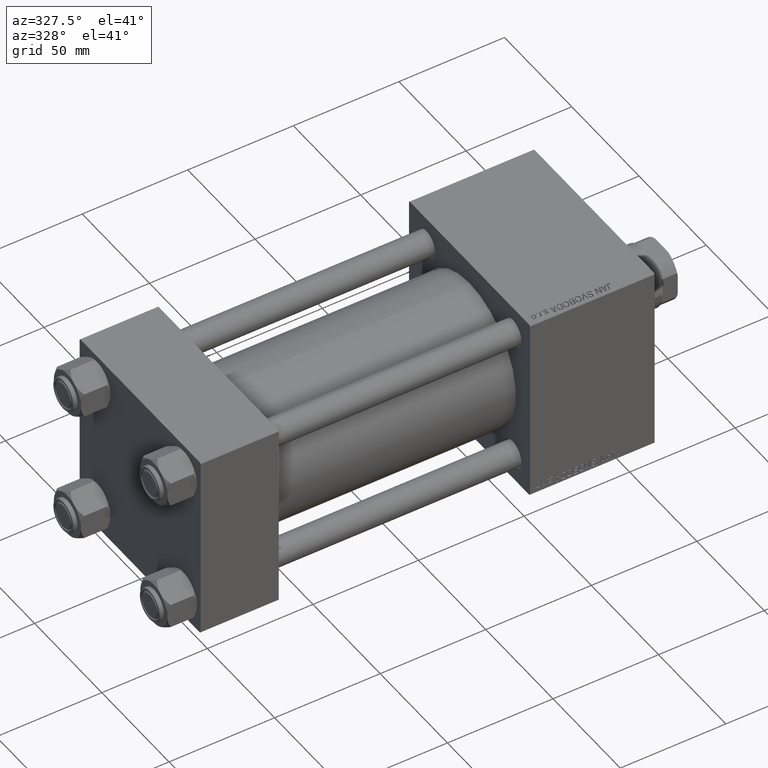
[diagram: clean part render]
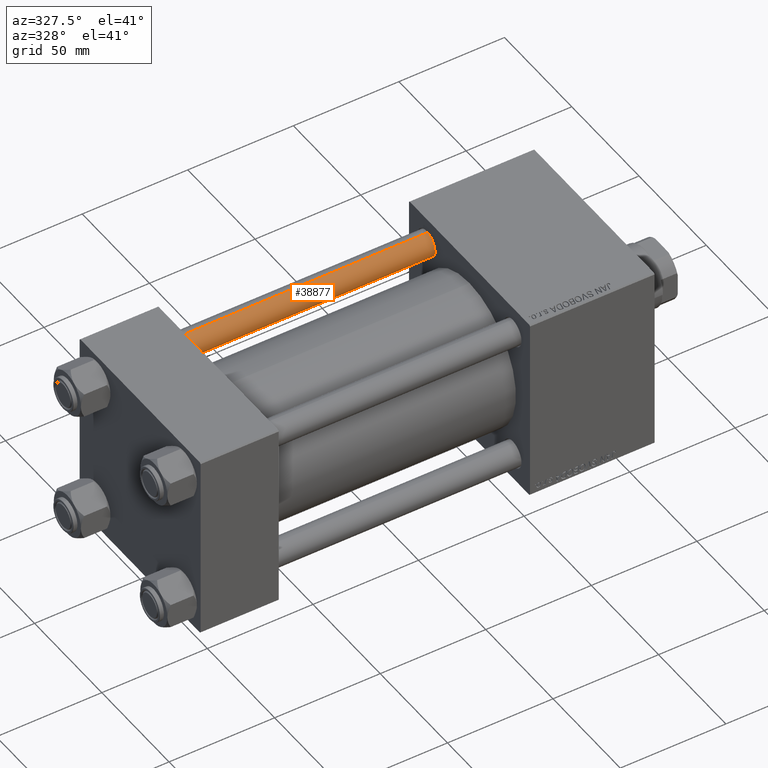
[diagram: same view with one face highlighted and labeled with its STEP entity id]
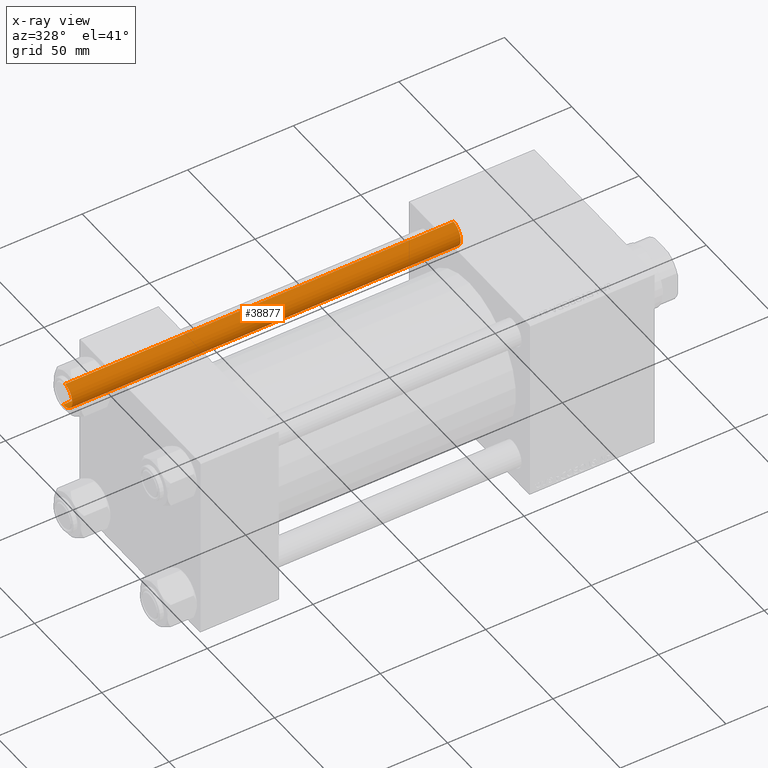
[diagram: x-ray of the same camera — body ghosted, the highlighted face saturated]
A machine part, auxiliary view. The second image highlights one B-rep face of the part: STEP entity #38877.
The next image is the same camera in x-ray: the body ghosted, the highlighted face saturated — about 0% of this face is hidden behind the body in this view.
In plain terms, the highlighted cylindrical surface (edge-blend (fillet) strip) has radius 6 mm, axis along (-1, 0, 0).
Its self-contained STEP definition (entity closure, byte-faithful):
#662 = AXIS2_PLACEMENT_3D ( 'NONE', #10760, #50014, #22193 ) ;
#823 = DIRECTION ( 'NONE',  ( -0.000000000000000000, -0.000000000000000000, -1.000000000000000000 ) ) ;
#3267 = VECTOR ( 'NONE', #823, 1000.000000000000000 ) ;
#4094 = DIRECTION ( 'NONE',  ( 0.000000000000000000, 0.000000000000000000, -1.000000000000000000 ) ) ;
#4176 = ORIENTED_EDGE ( 'NONE', *, *, #15248, .F. ) ;
#4811 = CIRCLE ( 'NONE', #662, 6.000000000000000888 ) ;
#5275 = VERTEX_POINT ( 'NONE', #38636 ) ;
#6676 = EDGE_CURVE ( 'NONE', #5275, #12648, #24962, .T. ) ;
#9697 = VERTEX_POINT ( 'NONE', #27113 ) ;
#10760 = CARTESIAN_POINT ( 'NONE',  ( 0.000000000000000000, 0.000000000000000000, 0.5000000000000281997 ) ) ;
#12648 = VERTEX_POINT ( 'NONE', #39116 ) ;
#14749 = CARTESIAN_POINT ( 'NONE',  ( 0.000000000000000000, 0.000000000000000000, 185.0000000000000000 ) ) ;
#15233 = EDGE_CURVE ( 'NONE', #9697, #5275, #20180, .T. ) ;
#15248 = EDGE_CURVE ( 'NONE', #9697, #35331, #31870, .T. ) ;
#17012 = ORIENTED_EDGE ( 'NONE', *, *, #15233, .T. ) ;
#19158 = AXIS2_PLACEMENT_3D ( 'NONE', #14749, #25922, #30566 ) ;
#20180 = CIRCLE ( 'NONE', #45907, 6.000000000000000888 ) ;
#21078 = CARTESIAN_POINT ( 'NONE',  ( -6.000000000000000888, 0.000000000000000000, 185.0000000000000000 ) ) ;
#22033 = CYLINDRICAL_SURFACE ( 'NONE', #19158, 6.000000000000000888 ) ;
#22193 = DIRECTION ( 'NONE',  ( 1.000000000000000000, 0.000000000000000000, 0.000000000000000000 ) ) ;
#24962 = LINE ( 'NONE', #21078, #3267 ) ;
#25922 = DIRECTION ( 'NONE',  ( -0.000000000000000000, -0.000000000000000000, -1.000000000000000000 ) ) ;
#26968 = DIRECTION ( 'NONE',  ( -0.000000000000000000, -0.000000000000000000, -1.000000000000000000 ) ) ;
#27113 = CARTESIAN_POINT ( 'NONE',  ( 6.000000000000000888, 7.347880794884120722E-16, 184.5000000000000000 ) ) ;
#27979 = CARTESIAN_POINT ( 'NONE',  ( 6.000000000000000888, 7.347880794884120722E-16, 185.0000000000000000 ) ) ;
#28886 = ORIENTED_EDGE ( 'NONE', *, *, #30338, .T. ) ;
#29268 = CARTESIAN_POINT ( 'NONE',  ( 0.000000000000000000, 0.000000000000000000, 184.5000000000000000 ) ) ;
#30338 = EDGE_CURVE ( 'NONE', #12648, #35331, #4811, .T. ) ;
#30566 = DIRECTION ( 'NONE',  ( -1.000000000000000000, 0.000000000000000000, 0.000000000000000000 ) ) ;
#31870 = LINE ( 'NONE', #27979, #35916 ) ;
#35331 = VERTEX_POINT ( 'NONE', #43285 ) ;
#35916 = VECTOR ( 'NONE', #26968, 1000.000000000000000 ) ;
#38636 = CARTESIAN_POINT ( 'NONE',  ( -6.000000000000000888, 0.000000000000000000, 184.5000000000000000 ) ) ;
#38877 = ADVANCED_FACE ( 'NONE', ( #42285 ), #22033, .T. ) ;
#39116 = CARTESIAN_POINT ( 'NONE',  ( -6.000000000000000888, 0.000000000000000000, 0.5000000000000281997 ) ) ;
#40004 = EDGE_LOOP ( 'NONE', ( #4176, #17012, #49796, #28886 ) ) ;
#42285 = FACE_OUTER_BOUND ( 'NONE', #40004, .T. ) ;
#43285 = CARTESIAN_POINT ( 'NONE',  ( 6.000000000000000888, 7.347880794884120722E-16, 0.5000000000000281997 ) ) ;
#45907 = AXIS2_PLACEMENT_3D ( 'NONE', #29268, #4094, #47244 ) ;
#47244 = DIRECTION ( 'NONE',  ( 1.000000000000000000, 0.000000000000000000, 0.000000000000000000 ) ) ;
#49796 = ORIENTED_EDGE ( 'NONE', *, *, #6676, .T. ) ;
#50014 = DIRECTION ( 'NONE',  ( -0.000000000000000000, -0.000000000000000000, 1.000000000000000000 ) ) ;